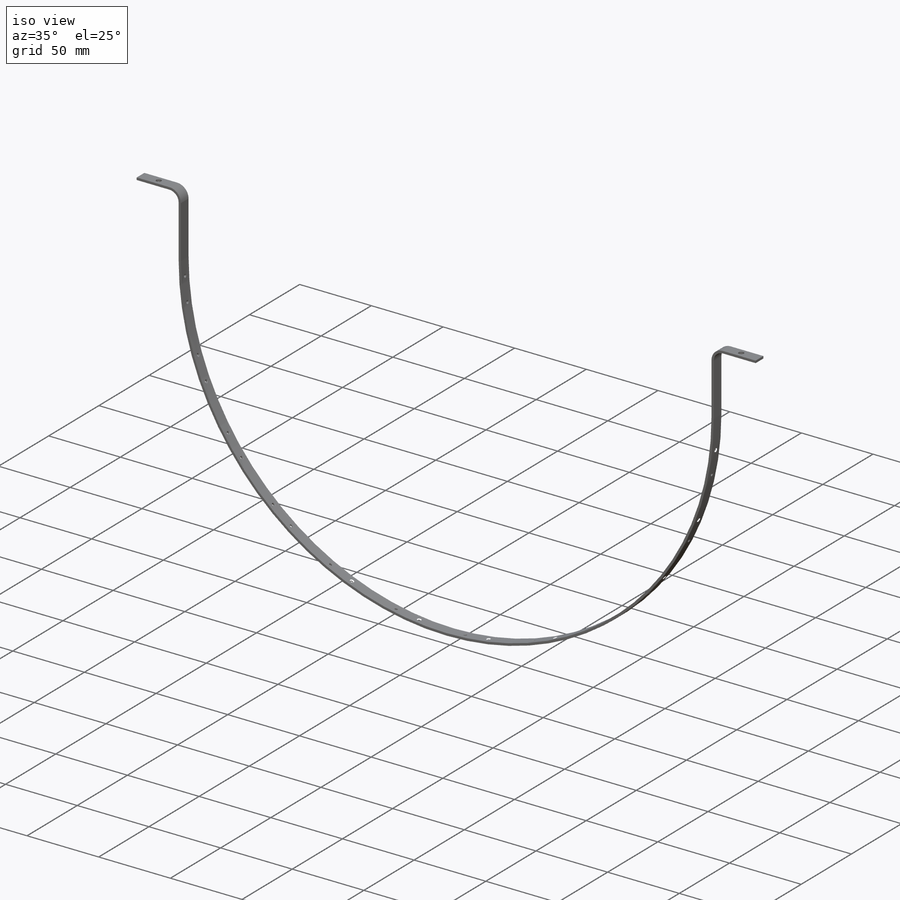
[diagram: iso view]
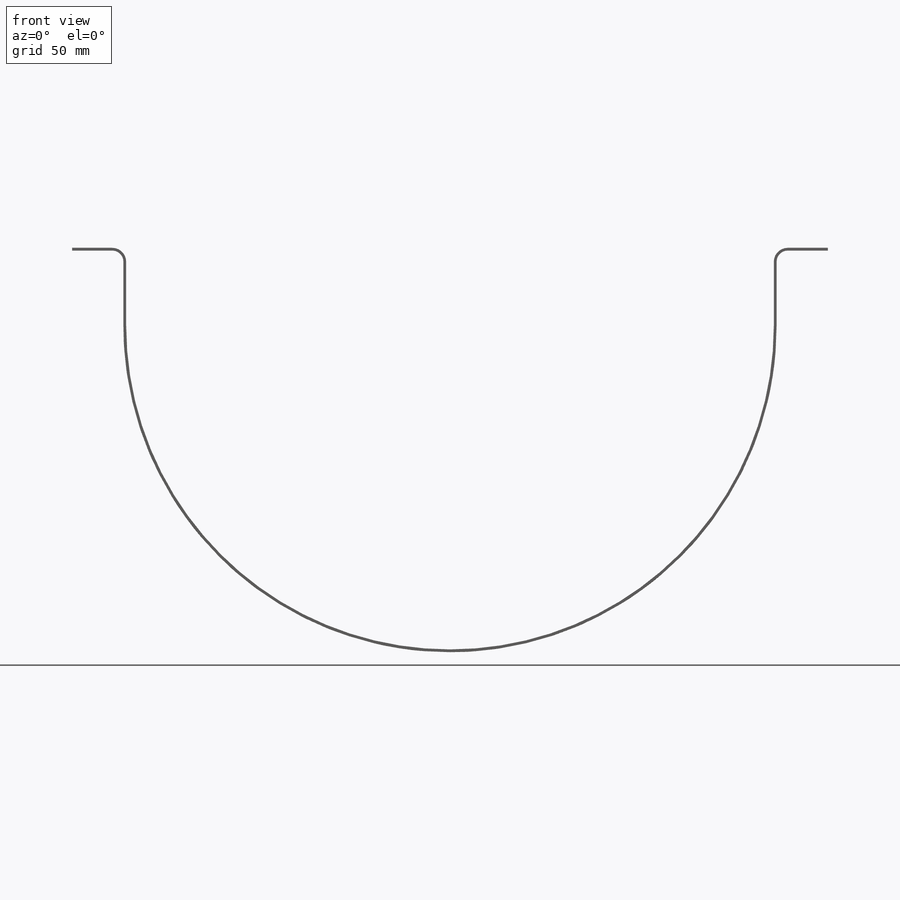
[diagram: front view]
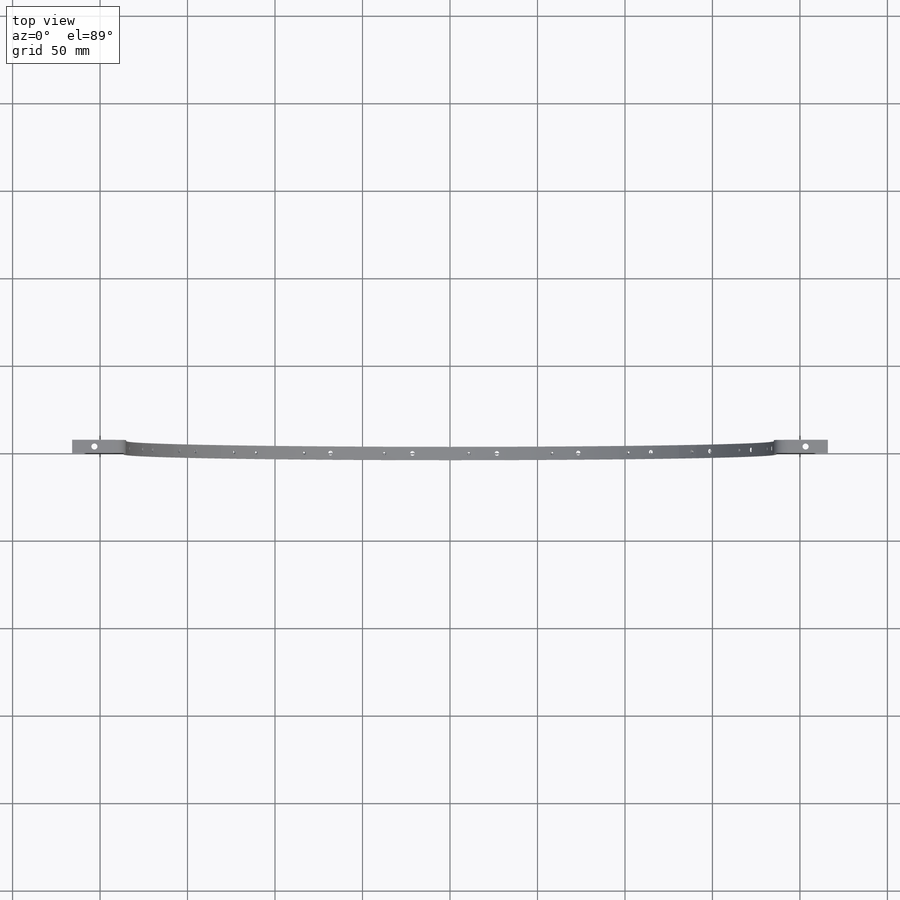
[diagram: top view]
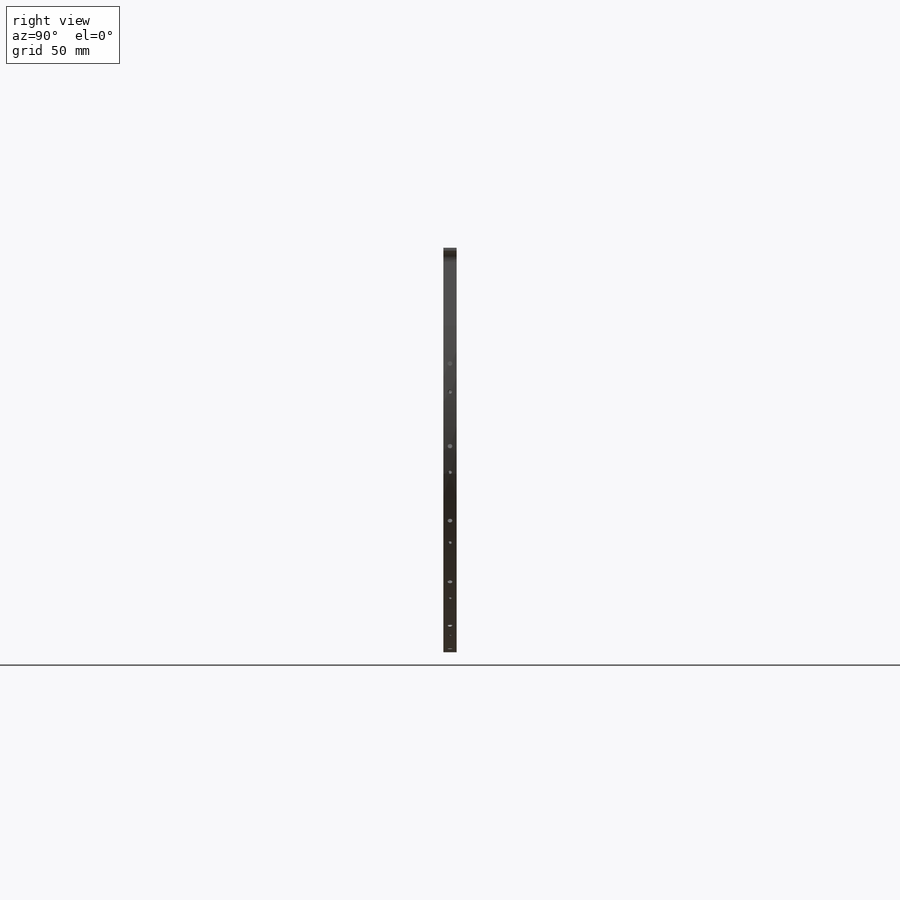
[diagram: right view]
SOLIDWORKS PART (.sldprt)
format: sldprt  version: not decoded by parser v0  size: 4,184,064 bytes
history: native  units: mm
features: sketch x10, plane x5, sheet_metal_op x3, cut_extrude x3, pattern_circular x3, fillet x2, material x1 + 4 further entries (+13 scaffold rows collapsed; 1 parser-record rows omitted)
feature tree (45):
  scaffold x13  (default folders/planes/origin — collapsed)
  material  "Material <not specified>"
  plane  "Plane1"
  plane  "Plane2"
  plane  "Plane3"
  "Axis2"
  "Axis3"
  sketch  "Sketch1"  dims[c1.D1=~204.79922mm c2.D1=~82.368836mm c2.D2=~173.32754mm c3.D1=7.62mm c3.Thickness=1.5875mm c3.D6=1.0mm c3.D7=5.0mm]
  sheet_metal_op  "Sheet-Metal3"
  sketch  "Sharp-Sketch1"  dims[D1=0.0mm]
  sketch  "Flat-Sketch1"  dims[D1=0.0mm]
  sketch  "Sketch11"  dims[D1=36.5125mm]
  parser-record x1  (decoder bookkeeping rows leaked as tree rows — omitted from the tree; the rows remain in map.json)
  sketch  "Sketch13"
  sheet_metal_op  "HemBend1"
  sketch  "Sketch14"  dims[D1=36.5125mm]
  sheet_metal_op  "Sketched Bend2"  Sketch Transformation3=0
  "SketchBend2"
  sketch  "Sketch15"  dims[D1=3.4544mm D2=12.7mm D3=12.7mm]
  cut_extrude  "Cut-Extrude1"  [1 undecoded]
  plane  "Plane4"
  sketch  "Sketch16"  dims[D1=1.5875mm]
  cut_extrude  "Cut-Extrude2"  [1 undecoded]
  fillet  "Fillet1"  Radius=0.508mm
  plane  "Plane5"
  sketch  "Sketch17"  dims[D1=1.5875mm]
  cut_extrude  "Cut-Extrude3"  [1 undecoded]
  fillet  "Fillet2"  Radius=0.508mm
  pattern_circular  "CirPattern1"  Count=12 Angle=15deg
  "Flat-Pattern3"
  sketch  "Bend-Lines3"
  pattern_circular  "Flatten-<HemBend1>1"  [2 undecoded]
  pattern_circular  "Flatten-<SketchBend2>1"  Sketch Transformation4=0  [2 undecoded]
decode coverage: 13 of 21 modeling features carry decoded parameters; 4 rows unclassified (native names shown)
note: ~ marks probable driven/reference dimensions
note: 7 parameter values undecoded
summary: no parameter record found for 3 features
note: suppression state not decoded; provenance and decode notes live in map.json
